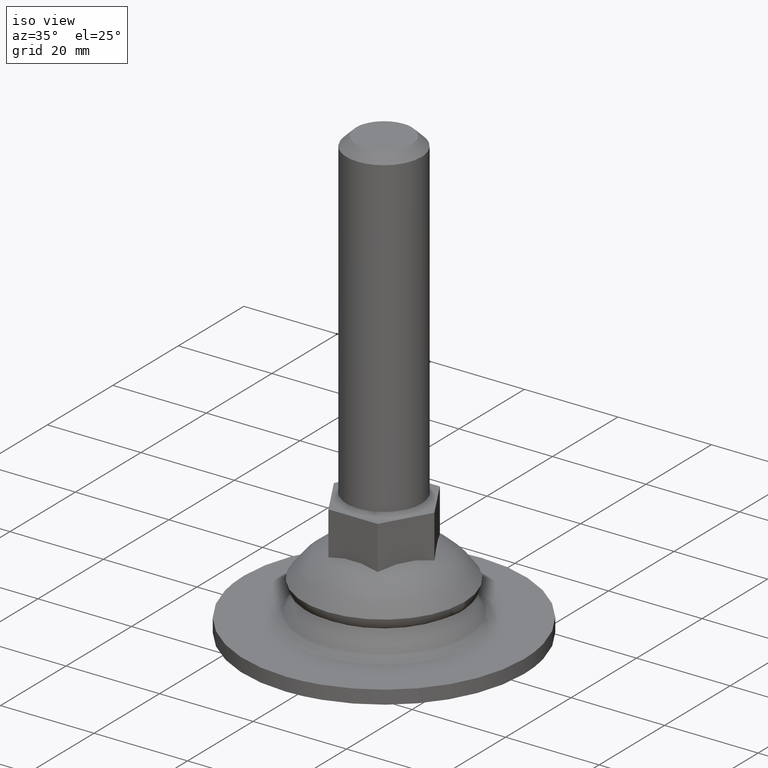
[diagram: clean part render]
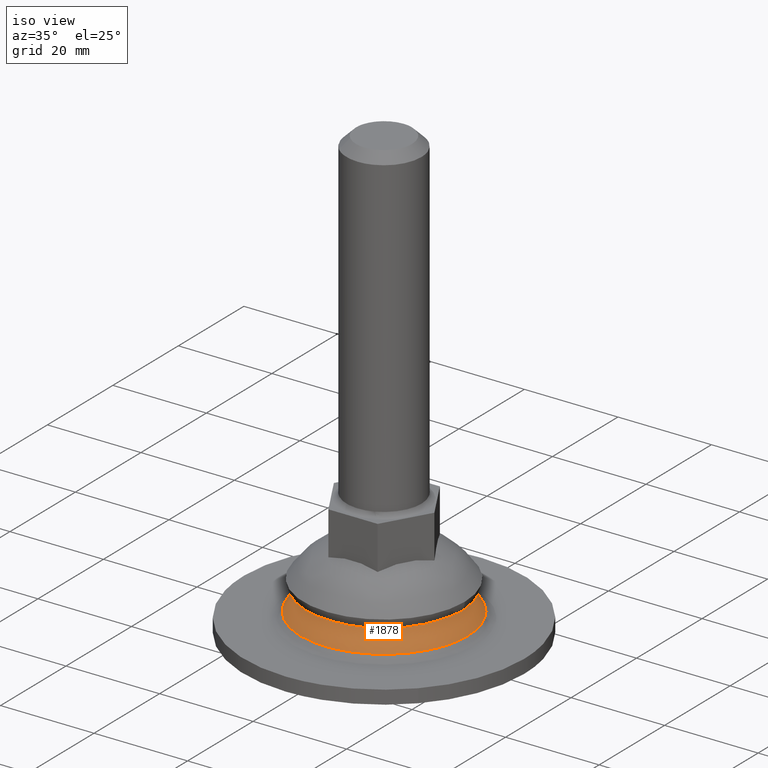
[diagram: same view with one face highlighted and labeled with its STEP entity id]
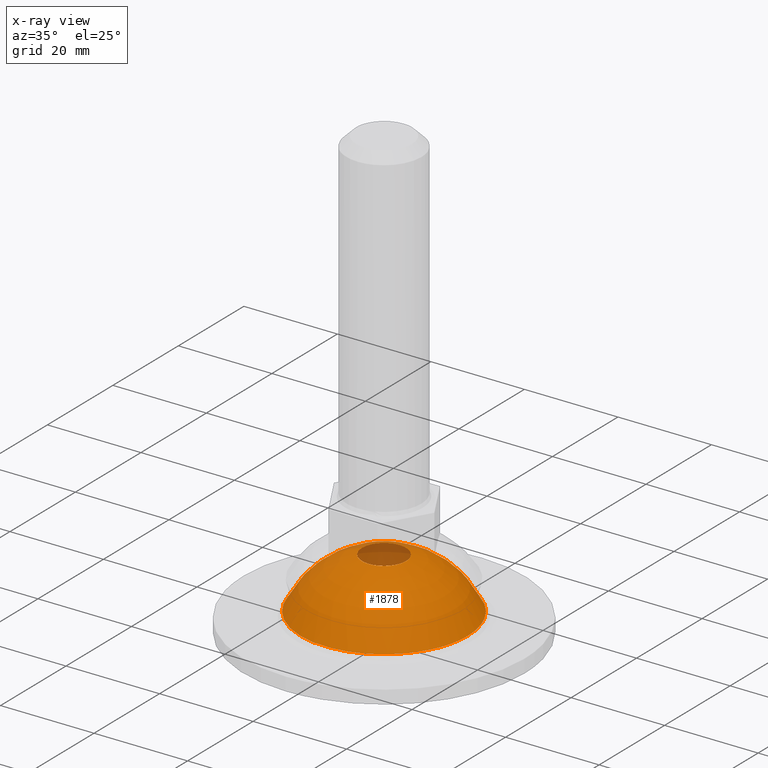
[diagram: x-ray of the same camera — body ghosted, the highlighted face saturated]
A machine part, iso view. The second image highlights one B-rep face of the part: STEP entity #1878.
The next image is the same camera in x-ray: the body ghosted, the highlighted face saturated — about 7% of this face is hidden behind the body in this view.
In plain terms, the highlighted face is a freeform B-spline surface patch.
Its self-contained STEP definition (entity closure, byte-faithful):
#1698=CARTESIAN_POINT('',(-13.859762002735696,-13.859762002795026,-3.747028749850528));
#1699=CARTESIAN_POINT('',(-9.200264297476355,-18.400528596822973,2.757998769069907));
#1700=CARTESIAN_POINT('',(9.200264298047129,-18.400528596822973,2.757998768292872));
#1701=CARTESIAN_POINT('',(13.859762002757062,-13.859762002795026,-3.747028751021087));
#1702=CARTESIAN_POINT('',(-18.400528595238100,-9.200264299061237,2.757998771227537));
#1703=CARTESIAN_POINT('',(-13.683178058572359,-13.683178063169469,15.602295781859340));
#1704=CARTESIAN_POINT('',(13.683178060227929,-13.683178063169469,15.602295780703690));
#1705=CARTESIAN_POINT('',(18.400528595808868,-9.200264299061237,2.757998769673474));
#1706=CARTESIAN_POINT('',(-18.400528595238100,9.200264296462247,2.757998774765766));
#1707=CARTESIAN_POINT('',(-13.683178058572359,13.683178055630821,15.602295787121610));
#1708=CARTESIAN_POINT('',(13.683178060227929,13.683178055630821,15.602295785965950));
#1709=CARTESIAN_POINT('',(18.400528595808868,9.200264296462247,2.757998773211703));
#1710=CARTESIAN_POINT('',(-13.859762002735696,13.859762002697737,-3.747028744520349));
#1711=CARTESIAN_POINT('',(-9.200264297476355,18.400528594223992,2.757998776146369));
#1712=CARTESIAN_POINT('',(9.200264298047129,18.400528594223992,2.757998775369330));
#1713=CARTESIAN_POINT('',(13.859762002757062,13.859762002697737,-3.747028745690911));
#1721=(BOUNDED_SURFACE()B_SPLINE_SURFACE(2,2,((#1698,#1702,#1706,#1710),(#1699,#1703,#1707,#1711),(#1700,#1704,#1708,#1712),(#1701,#1705,#1709,#1713)),.UNSPECIFIED.,.F.,.F.,.U.)B_SPLINE_SURFACE_WITH_KNOTS((3,1,3),(3,1,3),(0.0,22.005230264740518,44.010460529481037),(0.0,22.005230264740518,44.010460529481037),.UNSPECIFIED.)GEOMETRIC_REPRESENTATION_ITEM()RATIONAL_B_SPLINE_SURFACE(((1.974518473937540,1.487259236968770,1.487259236968770,1.974518473937540),(1.487259236968770,1.0,1.0,1.487259236968770),(1.487259236968770,1.0,1.0,1.487259236968770),(1.974518473937540,1.487259236968770,1.487259236968770,1.974518473937540)))REPRESENTATION_ITEM('')SURFACE());
#1722=CARTESIAN_POINT('',(-16.161437285455271,-7.604995119649921,4.076013502861265));
#1723=VERTEX_POINT('',#1722);
#1724=CARTESIAN_POINT('',(-17.861355096319620,0.0,4.076013504395406));
#1725=VERTEX_POINT('',#1724);
#1726=CARTESIAN_POINT('',(-16.161437285455271,-7.604995119649921,4.076013502861265));
#1727=CARTESIAN_POINT('',(-16.666785484705080,-6.531420096412492,4.076013503089232));
#1728=CARTESIAN_POINT('',(-17.544627828928899,-4.050504932571069,4.076013503603591));
#1729=CARTESIAN_POINT('',(-17.861675652136260,-1.432082257836149,4.076013504120264));
#1730=CARTESIAN_POINT('',(-17.861355096319620,0.0,4.076013504395406));
#1731=B_SPLINE_CURVE_WITH_KNOTS('',3,(#1726,#1727,#1728,#1729,#1730),.UNSPECIFIED.,.F.,.U.,(4,1,4),(4.674750E-009,3.559686679757147,7.855849732298113),.UNSPECIFIED.);
#1732=EDGE_CURVE('',#1723,#1725,#1731,.T.);
#1733=ORIENTED_EDGE('',*,*,#1732,.F.);
#1734=CARTESIAN_POINT('',(17.861355096319649,0.0,4.076013504395419));
#1735=VERTEX_POINT('',#1734);
#1736=CARTESIAN_POINT('',(17.861355096319649,0.0,4.076013504395419));
#1737=CARTESIAN_POINT('',(17.861462997717631,-1.099604924009491,4.076013504384848));
#1738=CARTESIAN_POINT('',(17.701263669010508,-2.827505183353669,4.076013504361439));
#1739=CARTESIAN_POINT('',(17.109164471905839,-5.273771363216730,4.076013504312449));
#1740=CARTESIAN_POINT('',(16.187037402921039,-7.752667962699063,4.076013504249086));
#1741=CARTESIAN_POINT('',(14.762230837327809,-10.212359501096831,4.076013504164281));
#1742=CARTESIAN_POINT('',(13.044681924774610,-12.265500037122051,4.076013504070811));
#1743=CARTESIAN_POINT('',(11.437628406546301,-13.771305855458539,4.076013503987340));
#1744=CARTESIAN_POINT('',(9.564665384418806,-15.156536728787220,4.076013503893663));
#1745=CARTESIAN_POINT('',(7.317453388313557,-16.367653832734501,4.076013503785338));
#1746=CARTESIAN_POINT('',(4.915574956308149,-17.227836288795949,4.076013503674269));
#1747=CARTESIAN_POINT('',(2.267383342315917,-17.790584076673220,4.076013503554785));
#1748=CARTESIAN_POINT('',(-0.725682375849336,-17.951512482593380,4.076013503424946));
#1749=CARTESIAN_POINT('',(-3.697120319048789,-17.551996085019759,4.076013503301038));
#1750=CARTESIAN_POINT('',(-6.048671808205473,-16.845116352629930,4.076013503206875));
#1751=CARTESIAN_POINT('',(-8.247884618830062,-15.908251745241810,4.076013503121414));
#1752=CARTESIAN_POINT('',(-10.195919786052411,-14.740630523062849,4.076013503048955));
#1753=CARTESIAN_POINT('',(-12.173525820745230,-13.133343196929570,4.076013502979478));
#1754=CARTESIAN_POINT('',(-13.503225971277850,-11.746476232871240,4.076013502935634));
#1755=CARTESIAN_POINT('',(-14.941751357583660,-9.878207113856666,4.076013502891860));
#1756=CARTESIAN_POINT('',(-15.706733883399140,-8.571582662157457,4.076013502871359));
#1757=CARTESIAN_POINT('',(-16.161437285455271,-7.604995119649921,4.076013502861265));
#1758=B_SPLINE_CURVE_WITH_KNOTS('',3,(#1736,#1737,#1738,#1739,#1740,#1741,#1742,#1743,#1744,#1745,#1746,#1747,#1748,#1749,#1750,#1751,#1752,#1753,#1754,#1755,#1756,#1757),.UNSPECIFIED.,.F.,.U.,(4,1,1,1,1,1,1,1,1,1,1,1,1,1,1,1,1,1,1,4),(0.000000133176734,3.298790902591485,5.183853572113705,7.540199099210220,11.216055062083580,13.666636185342099,15.551698810070480,17.813753929373771,20.641323598397289,23.186154100918230,25.448148008372591,28.746996961086630,32.140111396161572,34.402183998165782,36.098740628561060,39.303344999912007,41.188405734581082,43.733225465086377,45.052762489385827,48.257323669786260),.UNSPECIFIED.);
#1759=EDGE_CURVE('',#1735,#1723,#1758,.T.);
#1760=ORIENTED_EDGE('',*,*,#1759,.F.);
#1761=CARTESIAN_POINT('',(16.161437285455271,7.604995119649917,4.076013502861264));
#1762=VERTEX_POINT('',#1761);
#1763=CARTESIAN_POINT('',(16.161437285455271,7.604995119649917,4.076013502861264));
#1764=CARTESIAN_POINT('',(16.771478346961320,6.309344756953520,4.076013503136400));
#1765=CARTESIAN_POINT('',(17.599474884198521,3.805132782692286,4.076013503653088));
#1766=CARTESIAN_POINT('',(17.861501920773790,1.186566538491044,4.076013504167452));
#1767=CARTESIAN_POINT('',(17.861355096319649,0.0,4.076013504395419));
#1768=B_SPLINE_CURVE_WITH_KNOTS('',3,(#1763,#1764,#1765,#1766,#1767),.UNSPECIFIED.,.F.,.U.,(4,1,4),(4.674820E-009,4.296163057215974,7.855849732298115),.UNSPECIFIED.);
#1769=EDGE_CURVE('',#1762,#1735,#1768,.T.);
#1770=ORIENTED_EDGE('',*,*,#1769,.F.);
#1771=CARTESIAN_POINT('',(-17.861355096319620,0.0,4.076013504395406));
#1772=CARTESIAN_POINT('',(-17.861666572036231,1.382390864368040,4.076013504382130));
#1773=CARTESIAN_POINT('',(-17.626716677538099,3.392945969479757,4.076013504352795));
#1774=CARTESIAN_POINT('',(-16.821826216268342,6.140471265633197,4.076013504291752));
#1775=CARTESIAN_POINT('',(-16.020243607389482,7.990072730129993,4.076013504239665));
#1776=CARTESIAN_POINT('',(-14.964013023839859,9.813330694998323,4.076013504176769));
#1777=CARTESIAN_POINT('',(-13.590746966349030,11.694633809881401,4.076013504099829));
#1778=CARTESIAN_POINT('',(-11.792049031415580,13.509305674788280,4.076013504004911));
#1779=CARTESIAN_POINT('',(-9.438107092074047,15.250163959887090,4.076013503887463));
#1780=CARTESIAN_POINT('',(-7.144602506254605,16.447446776030159,4.076013503777288));
#1781=CARTESIAN_POINT('',(-4.433103638258080,17.370399175313260,4.076013503651820));
#1782=CARTESIAN_POINT('',(-1.827000637382228,17.845532309213120,4.076013503535578));
#1783=CARTESIAN_POINT('',(1.259746421167390,17.905433663158309,4.076013503402151));
#1784=CARTESIAN_POINT('',(3.787174547076470,17.518045969302719,4.076013503297969));
#1785=CARTESIAN_POINT('',(6.106005845908121,16.821007740372359,4.076013503203675));
#1786=CARTESIAN_POINT('',(8.050795708992508,16.004598585029719,4.076013503129214));
#1787=CARTESIAN_POINT('',(9.923679303694438,14.902045613534140,4.076013503059037));
#1788=CARTESIAN_POINT('',(11.725453525721200,13.530137208316249,4.076013502994930));
#1789=CARTESIAN_POINT('',(13.218578496454590,12.083733184057120,4.076013502944547));
#1790=CARTESIAN_POINT('',(14.830198961133259,10.068768679177420,4.076013502894959));
#1791=CARTESIAN_POINT('',(15.706731564753211,8.571580015066488,4.076013502871354));
#1792=CARTESIAN_POINT('',(16.161437285455271,7.604995119649917,4.076013502861264));
#1793=B_SPLINE_CURVE_WITH_KNOTS('',3,(#1771,#1772,#1773,#1774,#1775,#1776,#1777,#1778,#1779,#1780,#1781,#1782,#1783,#1784,#1785,#1786,#1787,#1788,#1789,#1790,#1791,#1792),.UNSPECIFIED.,.F.,.U.,(4,1,1,1,1,1,1,1,1,1,1,1,1,1,1,1,1,1,1,4),(0.000000133187612,4.147070520679272,6.032134332779933,8.576978738793720,10.179270824451830,12.347091117649970,15.551698810070240,17.813753929372570,21.112601623071122,23.280444936465820,26.390692234963531,29.029779138039910,32.517120132391852,34.025175252374538,36.287246581971623,38.832069316790147,40.528627768869832,43.073451539929863,45.052762489385813,48.257323669786231),.UNSPECIFIED.);
#1794=EDGE_CURVE('',#1725,#1762,#1793,.T.);
#1795=ORIENTED_EDGE('',*,*,#1794,.F.);
#1796=EDGE_LOOP('',(#1733,#1760,#1770,#1795));
#1797=FACE_OUTER_BOUND('',#1796,.T.);
#1798=CARTESIAN_POINT('',(-4.729480478953000,0.0,15.023196745005899));
#1799=VERTEX_POINT('',#1798);
#1800=CARTESIAN_POINT('',(0.000001101164713,4.729480478952871,15.023196745005899));
#1801=VERTEX_POINT('',#1800);
#1802=CARTESIAN_POINT('',(-4.729480478953000,0.0,15.023196745005899));
#1803=CARTESIAN_POINT('',(-4.729494346284127,0.270844793045085,15.023196745005940));
#1804=CARTESIAN_POINT('',(-4.677853781043607,0.870589307472765,15.023196745005800));
#1805=CARTESIAN_POINT('',(-4.460439857177955,1.637903712945818,15.023196745005899));
#1806=CARTESIAN_POINT('',(-4.112336491397537,2.373837820127180,15.023196745005970));
#1807=CARTESIAN_POINT('',(-3.654868244139175,3.049541038694501,15.023196745005791));
#1808=CARTESIAN_POINT('',(-2.976781403501745,3.719386629129371,15.023196745006070));
#1809=CARTESIAN_POINT('',(-2.256487355806287,4.181654148835609,15.023196745005709));
#1810=CARTESIAN_POINT('',(-1.276663130726855,4.601778227506463,15.023196745005800));
#1811=CARTESIAN_POINT('',(-0.541767600178775,4.729878470443184,15.023196745006240));
#1812=CARTESIAN_POINT('',(0.000001101164713,4.729480478952871,15.023196745005899));
#1813=B_SPLINE_CURVE_WITH_KNOTS('',3,(#1802,#1803,#1804,#1805,#1806,#1807,#1808,#1809,#1810,#1811,#1812),.UNSPECIFIED.,.F.,.U.,(4,1,1,1,1,1,1,1,4),(0.000000111435779,0.812540470674407,1.799233814256809,2.379639876239772,3.250257623806015,4.236907030201931,5.223581413279901,5.803987673416665,7.429097798774405),.UNSPECIFIED.);
#1814=EDGE_CURVE('',#1799,#1801,#1813,.T.);
#1815=ORIENTED_EDGE('',*,*,#1814,.T.);
#1816=CARTESIAN_POINT('',(3.195190892645785,3.486938983683540,15.023196802956081));
#1817=VERTEX_POINT('',#1816);
#1818=CARTESIAN_POINT('',(0.000001101164713,4.729480478952871,15.023196745005899));
#1819=CARTESIAN_POINT('',(0.310621013749797,4.729516313519119,15.023196750639521));
#1820=CARTESIAN_POINT('',(0.968387069959840,4.664463081457774,15.023196762569270));
#1821=CARTESIAN_POINT('',(2.089855586325763,4.308860256409918,15.023196782908821));
#1822=CARTESIAN_POINT('',(2.818177083873965,3.832840461791508,15.023196796118411));
#1823=CARTESIAN_POINT('',(3.195190892645785,3.486938983683540,15.023196802956081));
#1824=B_SPLINE_CURVE_WITH_KNOTS('',3,(#1818,#1819,#1820,#1821,#1822,#1823),.UNSPECIFIED.,.F.,.U.,(4,1,1,4),(0.000000024992939,0.931861674990826,1.973337917443526,3.508181406087950),.UNSPECIFIED.);
#1825=EDGE_CURVE('',#1801,#1817,#1824,.T.);
#1826=ORIENTED_EDGE('',*,*,#1825,.T.);
#1827=CARTESIAN_POINT('',(4.729480478953000,0.0,15.023196745005899));
#1828=VERTEX_POINT('',#1827);
#1829=CARTESIAN_POINT('',(3.195190892645785,3.486938983683540,15.023196802956081));
#1830=CARTESIAN_POINT('',(3.421055660471492,3.280016587951009,15.023196799517230));
#1831=CARTESIAN_POINT('',(3.873513143012588,2.776300590674809,15.023196791145759));
#1832=CARTESIAN_POINT('',(4.372542553871696,1.901119741986922,15.023196776601070));
#1833=CARTESIAN_POINT('',(4.667770221932512,0.939374658574425,15.023196760617481));
#1834=CARTESIAN_POINT('',(4.729514877590570,0.306319961271593,15.023196750096719));
#1835=CARTESIAN_POINT('',(4.729480478953000,0.0,15.023196745005899));
#1836=B_SPLINE_CURVE_WITH_KNOTS('',3,(#1829,#1830,#1831,#1832,#1833,#1834,#1835),.UNSPECIFIED.,.F.,.U.,(4,1,1,1,4),(0.000000033463848,0.918963580426663,2.021704524280523,3.001951780894803,3.920915327838872),.UNSPECIFIED.);
#1837=EDGE_CURVE('',#1817,#1828,#1836,.T.);
#1838=ORIENTED_EDGE('',*,*,#1837,.T.);
#1839=CARTESIAN_POINT('',(-0.000001101164636,-4.729480478952871,15.023196745005899));
#1840=VERTEX_POINT('',#1839);
#1841=CARTESIAN_POINT('',(4.729480478953000,0.0,15.023196745005899));
#1842=CARTESIAN_POINT('',(4.729568735167716,-0.367586664215020,15.023196745005880));
#1843=CARTESIAN_POINT('',(4.659179214800986,-0.967281535320844,15.023196745005929));
#1844=CARTESIAN_POINT('',(4.372143400431512,-1.873474667070604,15.023196745005819));
#1845=CARTESIAN_POINT('',(3.986760224734228,-2.594444823488017,15.023196745006020));
#1846=CARTESIAN_POINT('',(3.368581539519312,-3.366919957161537,15.023196745005720));
#1847=CARTESIAN_POINT('',(2.603440471482143,-4.002794250439401,15.023196745005940));
#1848=CARTESIAN_POINT('',(1.746256306083234,-4.421046754421735,15.023196745005871));
#1849=CARTESIAN_POINT('',(0.889906689814651,-4.669369769941833,15.023196745005791));
#1850=CARTESIAN_POINT('',(0.348239525275572,-4.729539267782132,15.023196745005899));
#1851=CARTESIAN_POINT('',(-0.000001101164636,-4.729480478952871,15.023196745005899));
#1852=B_SPLINE_CURVE_WITH_KNOTS('',3,(#1841,#1842,#1843,#1844,#1845,#1846,#1847,#1848,#1849,#1850,#1851),.UNSPECIFIED.,.F.,.U.,(4,1,1,1,1,1,1,1,4),(0.000000111433660,1.102739958111771,1.799233814255151,2.843955323513984,3.540431750437618,4.759259404980780,5.803987673416179,6.384387346289810,7.429097798774380),.UNSPECIFIED.);
#1853=EDGE_CURVE('',#1828,#1840,#1852,.T.);
#1854=ORIENTED_EDGE('',*,*,#1853,.T.);
#1855=CARTESIAN_POINT('',(-3.195190892645771,-3.486938983683525,15.023196802956070));
#1856=VERTEX_POINT('',#1855);
#1857=CARTESIAN_POINT('',(-0.000001101164636,-4.729480478952871,15.023196745005899));
#1858=CARTESIAN_POINT('',(-0.456824498876855,-4.729687239040104,15.023196753291209));
#1859=CARTESIAN_POINT('',(-1.187558890733341,-4.622711003568046,15.023196766544199));
#1860=CARTESIAN_POINT('',(-2.279092742028310,-4.190931778246463,15.023196786341170));
#1861=CARTESIAN_POINT('',(-2.871982673054194,-3.783343036749030,15.023196797094080));
#1862=CARTESIAN_POINT('',(-3.195190892645771,-3.486938983683525,15.023196802956070));
#1863=B_SPLINE_CURVE_WITH_KNOTS('',3,(#1857,#1858,#1859,#1860,#1861,#1862),.UNSPECIFIED.,.F.,.U.,(4,1,1,4),(0.000000024992441,1.370393332796500,2.192612985199663,3.508181406088029),.UNSPECIFIED.);
#1864=EDGE_CURVE('',#1840,#1856,#1863,.T.);
#1865=ORIENTED_EDGE('',*,*,#1864,.T.);
#1866=CARTESIAN_POINT('',(-3.195190892645771,-3.486938983683525,15.023196802956070));
#1867=CARTESIAN_POINT('',(-3.421055713650541,-3.280016202636326,15.023196799517160));
#1868=CARTESIAN_POINT('',(-3.873513496658657,-2.776301044646577,15.023196791145891));
#1869=CARTESIAN_POINT('',(-4.372541076781253,-1.901119464790587,15.023196776600880));
#1870=CARTESIAN_POINT('',(-4.667773502156832,-0.939374909515451,15.023196760617781));
#1871=CARTESIAN_POINT('',(-4.729512049630077,-0.306319937205658,15.023196750096551));
#1872=CARTESIAN_POINT('',(-4.729480478953000,0.0,15.023196745005899));
#1873=B_SPLINE_CURVE_WITH_KNOTS('',3,(#1866,#1867,#1868,#1869,#1870,#1871,#1872),.UNSPECIFIED.,.F.,.U.,(4,1,1,1,4),(0.000000033464068,0.918963580426837,2.021704524280624,3.001951780894856,3.920915327838859),.UNSPECIFIED.);
#1874=EDGE_CURVE('',#1856,#1799,#1873,.T.);
#1875=ORIENTED_EDGE('',*,*,#1874,.T.);
#1876=EDGE_LOOP('',(#1815,#1826,#1838,#1854,#1865,#1875));
#1877=FACE_BOUND('',#1876,.T.);
#1878=ADVANCED_FACE('',(#1797,#1877),#1721,.T.);